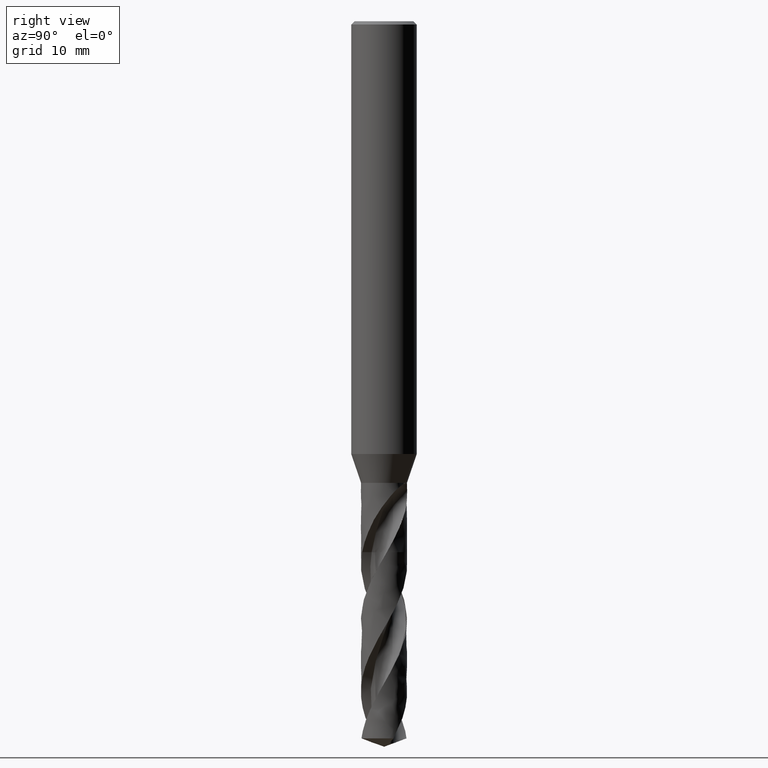
[diagram: clean part render]
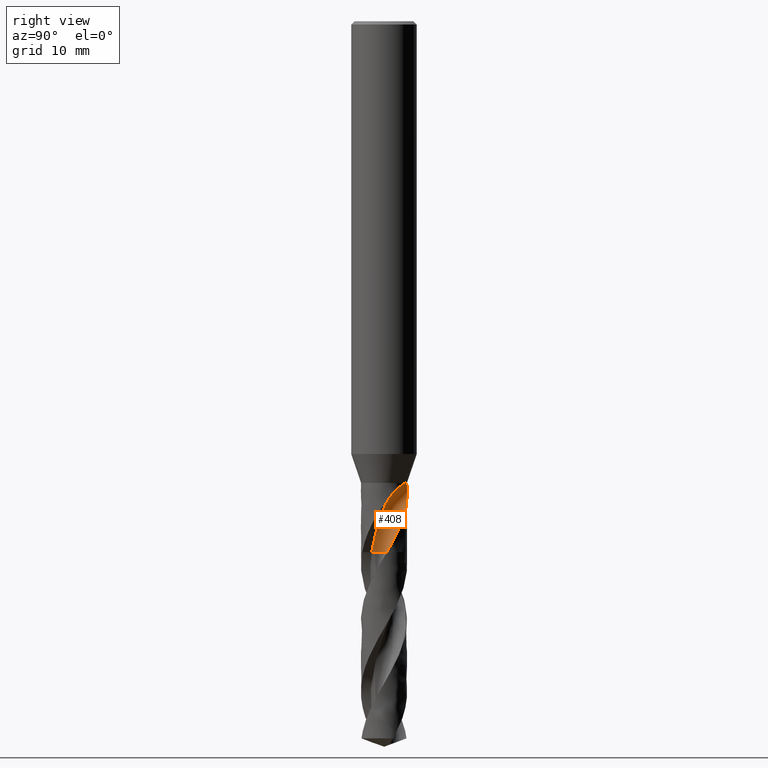
[diagram: same view with one face highlighted and labeled with its STEP entity id]
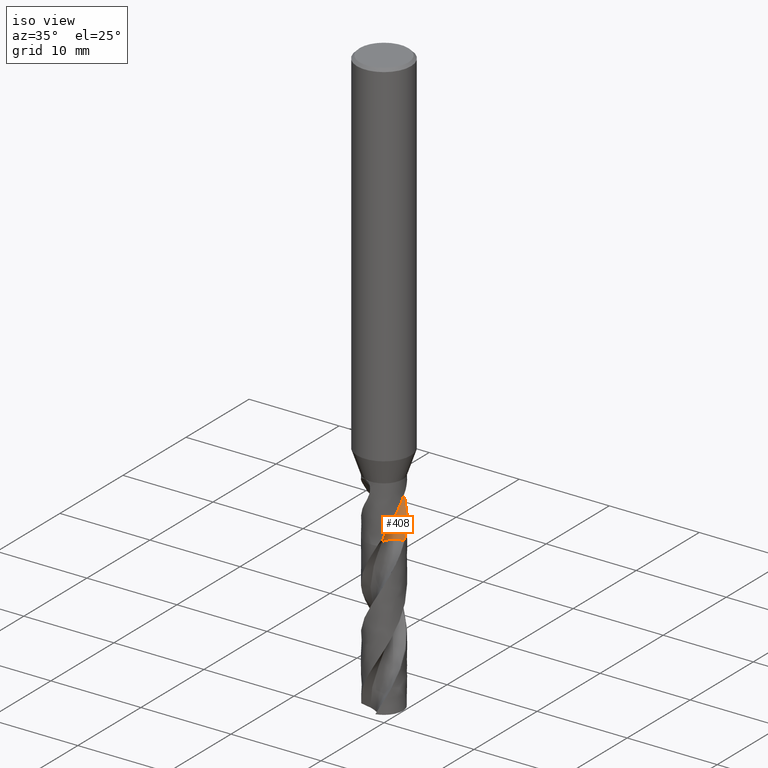
[diagram: same view with one face highlighted and labeled with its STEP entity id]
A machine part, right view. The second image highlights one B-rep face of the part: STEP entity #408.
A second angle (iso view) of the same face is appended — the face is thin or edge-on in the first view.
In plain terms, the highlighted face is a freeform B-spline surface patch.
Its self-contained STEP definition (entity closure, byte-faithful):
#109 = VERTEX_POINT('', #110);
#110 = CARTESIAN_POINT('', (0.720466397926303, 1.97254357859569, -42.));
#117 = EDGE_CURVE('', #118, #109, #120, .T.);
#118 = VERTEX_POINT('', #119);
#119 = CARTESIAN_POINT('', (0.718794540265984, 1.97315341747261, -42.));
#120 = CIRCLE('', #121, 2.1);
#121 = AXIS2_PLACEMENT_3D('', #122, #123, #124);
#122 = CARTESIAN_POINT('', (1.57474777179495E-31, 2.57175827820944E-15, -42.));
#123 = DIRECTION('', (3.74939945665464E-33, 6.12323399573677E-17, -1.));
#124 = DIRECTION('', (-1., 6.12323399573677E-17, 0.));
#245 = VERTEX_POINT('', #246);
#246 = CARTESIAN_POINT('', (0.560653576666516, -1.12535612456711, -48.3));
#252 = EDGE_CURVE('', #245, #253, #255, .T.);
#253 = VERTEX_POINT('', #254);
#254 = CARTESIAN_POINT('', (2.0252819029975, 0.555187547942891, -43.2444938822518));
#255 = B_SPLINE_CURVE_WITH_KNOTS('', 3, (#256, #257, #258, #259, #260, #261, #262, #263, #264, #265, #266, #267, #268, #269, #270, #271, #272), .UNSPECIFIED., .F., .U., (4, 1, 1, 1, 1, 1, 1, 1, 1, 1, 1, 1, 1, 1, 4), (17.75, 17.8435483870968, 18.2314516129032, 18.6193548387097, 19.0072580645161, 19.3951612903226, 19.783064516129, 20.1709677419355, 20.5588709677419, 20.9467741935484, 21.3346774193548, 21.7225806451613, 22.1104838709677, 22.4983870967742, 22.8055061177482), .UNSPECIFIED.);
#256 = CARTESIAN_POINT('', (0.560653576666516, -1.12535612456711, -48.3));
#257 = CARTESIAN_POINT('', (0.570326469002875, -1.12083874424312, -48.2688172043011));
#258 = CARTESIAN_POINT('', (0.619834531729123, -1.09695754696195, -48.1083333333333));
#259 = CARTESIAN_POINT('', (0.706546439594012, -1.04802661837741, -47.8185483870968));
#260 = CARTESIAN_POINT('', (0.815136861815549, -0.970280337042982, -47.4306451612903));
#261 = CARTESIAN_POINT('', (0.916515067570794, -0.882392689055831, -47.0427419354839));
#262 = CARTESIAN_POINT('', (1.00312700978166, -0.779458746114996, -46.6548387096774));
#263 = CARTESIAN_POINT('', (1.07082740614347, -0.663632137678925, -46.266935483871));
#264 = CARTESIAN_POINT('', (1.11767127387215, -0.538139102852908, -45.8790322580645));
#265 = CARTESIAN_POINT('', (1.14317540700796, -0.409455042223066, -45.4911290322581));
#266 = CARTESIAN_POINT('', (1.21197207491373, -0.296717842644385, -45.1032258064516));
#267 = CARTESIAN_POINT('', (1.31680452083975, -0.17967684608881, -44.7153225806452));
#268 = CARTESIAN_POINT('', (1.46043093059687, -0.04531628375623, -44.3274193548387));
#269 = CARTESIAN_POINT('', (1.63884970748528, 0.121376752312893, -43.9395161290323));
#270 = CARTESIAN_POINT('', (1.8314451171189, 0.319429573787991, -43.5785409715033));
#271 = CARTESIAN_POINT('', (1.96521196710713, 0.478045427874294, -43.3468668892431));
#272 = CARTESIAN_POINT('', (2.0252819029975, 0.55518754794289, -43.2444938822518));
#408 = ADVANCED_FACE('', (#409), #675, .T.);
#409 = FACE_OUTER_BOUND('', #410, .T.);
#410 = EDGE_LOOP('', (#411, #477, #516, #527, #618, #619, #674));
#411 = ORIENTED_EDGE('', *, *, #412, .T.);
#412 = EDGE_CURVE('', #245, #413, #415, .T.);
#413 = VERTEX_POINT('', #414);
#414 = CARTESIAN_POINT('', (2.08448666267482, 0.254784915430257, -48.3));
#415 = B_SPLINE_CURVE_WITH_KNOTS('', 3, (#416, #417, #418, #419, #420, #421, #422, #423, #424, #425, #426, #427, #428, #429, #430, #431, #432, #433, #434, #435, #436, #437, #438, #439, #440, #441, #442, #443, #444, #445, #446, #447, #448, #449, #450, #451, #452, #453, #454, #455, #456, #457, #458, #459, #460, #461, #462, #463, #464, #465, #466, #467, #468, #469, #470, #471, #472, #473, #474, #475, #476), .UNSPECIFIED., .F., .U., (4, 3, 3, 3, 3, 3, 3, 3, 3, 3, 3, 3, 3, 3, 3, 3, 3, 3, 3, 3, 4), (0., 0.132213928992968, 0.264236099309339, 0.396071631865521, 0.527724449058754, 0.659197371792932, 0.790492188199218, 0.921609697640628, 1.05254973227521, 1.18331115734, 1.20922925857439, 1.34144290770711, 1.47346480644019, 1.60530007388277, 1.7369526307869, 1.86842529652929, 1.99971985779418, 2.13083711254439, 2.26177689155326, 2.3925380586584, 2.40342444036958), .UNSPECIFIED.);
#416 = CARTESIAN_POINT('', (0.560653576666513, -1.12535612456711, -48.3));
#417 = CARTESIAN_POINT('', (0.55540932388341, -1.08159794649403, -48.3));
#418 = CARTESIAN_POINT('', (0.55245988058709, -1.03750378603264, -48.3));
#419 = CARTESIAN_POINT('', (0.551829550536965, -0.993436984247665, -48.3));
#420 = CARTESIAN_POINT('', (0.55120013469654, -0.949434095483475, -48.3));
#421 = CARTESIAN_POINT('', (0.552881366382324, -0.905337886733659, -48.3));
#422 = CARTESIAN_POINT('', (0.556859432121488, -0.861510664863356, -48.3));
#423 = CARTESIAN_POINT('', (0.560831874128837, -0.817745400878654, -48.3));
#424 = CARTESIAN_POINT('', (0.567105499460781, -0.774128754200451, -48.3));
#425 = CARTESIAN_POINT('', (0.575628907583493, -0.731018081030966, -48.3));
#426 = CARTESIAN_POINT('', (0.584140502824058, -0.687967156414412, -48.3));
#427 = CARTESIAN_POINT('', (0.594918829086154, -0.64530347154216, -48.3));
#428 = CARTESIAN_POINT('', (0.607875822412483, -0.603375608636678, -48.3));
#429 = CARTESIAN_POINT('', (0.620815110904572, -0.561505037252771, -48.3));
#430 = CARTESIAN_POINT('', (0.635962267880022, -0.520254473386053, -48.3));
#431 = CARTESIAN_POINT('', (0.653193871292957, -0.479960034830395, -48.3));
#432 = CARTESIAN_POINT('', (0.670402131058061, -0.439720183138225, -48.3));
#433 = CARTESIAN_POINT('', (0.6897358216432, -0.400324789764802, -48.3));
#434 = CARTESIAN_POINT('', (0.711037833963802, -0.362093988838794, -48.3));
#435 = CARTESIAN_POINT('', (0.732311079001325, -0.323914816662971, -48.3));
#436 = CARTESIAN_POINT('', (0.755604825035068, -0.286793878400138, -48.3));
#437 = CARTESIAN_POINT('', (0.780730292720963, -0.251032013012233, -48.3));
#438 = CARTESIAN_POINT('', (0.805821751695566, -0.21531855328867, -48.3));
#439 = CARTESIAN_POINT('', (0.832807608374214, -0.180864198995618, -48.3));
#440 = CARTESIAN_POINT('', (0.861469751919173, -0.147947424452706, -48.3));
#441 = CARTESIAN_POINT('', (0.890092798688707, -0.115075550241131, -48.3));
#442 = CARTESIAN_POINT('', (0.920464506143395, -0.083648673172589, -48.3));
#443 = CARTESIAN_POINT('', (0.952340065484604, -0.0539201071587754, -48.3));
#444 = CARTESIAN_POINT('', (0.958658090647599, -0.048027635559314, -48.3));
#445 = CARTESIAN_POINT('', (0.965037056963397, -0.0421998364500721, -48.3));
#446 = CARTESIAN_POINT('', (0.971474940496891, -0.0364385588903751, -48.3));
#447 = CARTESIAN_POINT('', (1.00431592938558, -0.00704907842861914, -48.3));
#448 = CARTESIAN_POINT('', (1.03874812602139, 0.0206530825710142, -48.3));
#449 = CARTESIAN_POINT('', (1.07448780625579, 0.0464396560103402, -48.3));
#450 = CARTESIAN_POINT('', (1.11017565297669, 0.0721888309980315, -48.3));
#451 = CARTESIAN_POINT('', (1.14726499277601, 0.0960985567143242, -48.3));
#452 = CARTESIAN_POINT('', (1.18545109044768, 0.117972384928199, -48.3));
#453 = CARTESIAN_POINT('', (1.2235832067666, 0.13981529144782, -48.3));
#454 = CARTESIAN_POINT('', (1.26291318591793, 0.159687763109911, -48.3));
#455 = CARTESIAN_POINT('', (1.30311879415282, 0.177426983122263, -48.3));
#456 = CARTESIAN_POINT('', (1.34326868142266, 0.195141618344042, -48.3));
#457 = CARTESIAN_POINT('', (1.38440118745553, 0.2107772050905, -48.3));
#458 = CARTESIAN_POINT('', (1.42618024180106, 0.224205993822741, -48.3));
#459 = CARTESIAN_POINT('', (1.46790220889512, 0.237616433345042, -48.3));
#460 = CARTESIAN_POINT('', (1.51038234894089, 0.248862565797848, -48.3));
#461 = CARTESIAN_POINT('', (1.55327452666382, 0.257852755816022, -48.3));
#462 = CARTESIAN_POINT('', (1.59610859885692, 0.266830766929275, -48.3));
#463 = CARTESIAN_POINT('', (1.63946969255266, 0.273583295268527, -48.3));
#464 = CARTESIAN_POINT('', (1.68300544898726, 0.278055468773705, -48.3));
#465 = CARTESIAN_POINT('', (1.72648241263438, 0.282521602839856, -48.3));
#466 = CARTESIAN_POINT('', (1.77025109367611, 0.284725626451494, -48.3));
#467 = CARTESIAN_POINT('', (1.81395677927016, 0.284649677624629, -48.3));
#468 = CARTESIAN_POINT('', (1.85760330637308, 0.284573831599445, -48.3));
#469 = CARTESIAN_POINT('', (1.90130467627924, 0.282223993294846, -48.3));
#470 = CARTESIAN_POINT('', (1.94470767784651, 0.277619155000399, -48.3));
#471 = CARTESIAN_POINT('', (1.98805147438993, 0.27302059805865, -48.3));
#472 = CARTESIAN_POINT('', (2.03121425214034, 0.266160841788323, -48.3));
#473 = CARTESIAN_POINT('', (2.0738481022363, 0.257095178506507, -48.3));
#474 = CARTESIAN_POINT('', (2.07739753802245, 0.2563404263646, -48.3));
#475 = CARTESIAN_POINT('', (2.08094379080992, 0.255570323400214, -48.3));
#476 = CARTESIAN_POINT('', (2.08448666233068, 0.254784913877895, -48.3));
#477 = ORIENTED_EDGE('', *, *, #478, .F.);
#478 = EDGE_CURVE('', #479, #413, #481, .T.);
#479 = VERTEX_POINT('', #480);
#480 = CARTESIAN_POINT('', (1.583637990497, 1.37916304875625, -46.1061919916705));
#481 = B_SPLINE_CURVE_WITH_KNOTS('', 3, (#482, #483, #484, #485, #486, #487, #488, #489, #490, #491, #492, #493, #494, #495, #496, #497, #498, #499, #500, #501, #502, #503, #504, #505, #506, #507, #508, #509, #510, #511, #512, #513, #514, #515), .UNSPECIFIED., .F., .U., (4, 3, 3, 3, 3, 3, 3, 3, 3, 3, 3, 4), (0., 0.197024655629448, 0.492449219754633, 0.689432775654647, 0.984800948005156, 1.11612172111188, 1.31306537129583, 1.510006098995, 1.80527386772211, 2.0021725076261, 2.44465978443875, 2.52450529147986), .UNSPECIFIED.);
#482 = CARTESIAN_POINT('', (1.583637990497, 1.37916304875625, -46.1061919916705));
#483 = CARTESIAN_POINT('', (1.60422536801812, 1.35552338323842, -46.1639026202265));
#484 = CARTESIAN_POINT('', (1.62438853536555, 1.33130110829821, -46.221530535667));
#485 = CARTESIAN_POINT('', (1.64407036438819, 1.30653459079376, -46.2790842997867));
#486 = CARTESIAN_POINT('', (1.67358187776514, 1.26939894594121, -46.3653821066501));
#487 = CARTESIAN_POINT('', (1.70202080399527, 1.23102815120017, -46.4515315087542));
#488 = CARTESIAN_POINT('', (1.72926157427588, 1.19149251266338, -46.5375092426732));
#489 = CARTESIAN_POINT('', (1.74742520874284, 1.16513089074879, -46.5948375823315));
#490 = CARTESIAN_POINT('', (1.76506036614773, 1.1382456760181, -46.6520976035713));
#491 = CARTESIAN_POINT('', (1.78213028366554, 1.11086077077297, -46.709282183098));
#492 = CARTESIAN_POINT('', (1.80772587369523, 1.06979831063365, -46.7950279432671));
#493 = CARTESIAN_POINT('', (1.83205156474957, 1.02760684959589, -46.8806294010498));
#494 = CARTESIAN_POINT('', (1.85496314746253, 0.984434721835786, -46.9660976525288));
#495 = CARTESIAN_POINT('', (1.86514964362771, 0.965240381602704, -47.0040968613501));
#496 = CARTESIAN_POINT('', (1.87505786583488, 0.945850691470941, -47.0420735308327));
#497 = CARTESIAN_POINT('', (1.88467647541766, 0.926279970099356, -47.0800287213452));
#498 = CARTESIAN_POINT('', (1.89910164240467, 0.896929478075366, -47.1369506658793));
#499 = CARTESIAN_POINT('', (1.91287762131463, 0.867166095906694, -47.1938294527289));
#500 = CARTESIAN_POINT('', (1.9259637455505, 0.83705653980189, -47.2506784859472));
#501 = CARTESIAN_POINT('', (1.93904967559885, 0.806947430498592, -47.3075266755717));
#502 = CARTESIAN_POINT('', (1.95144712818754, 0.77648790578222, -47.3643529664167));
#503 = CARTESIAN_POINT('', (1.96311448634019, 0.745775779655854, -47.4211874168353));
#504 = CARTESIAN_POINT('', (1.98060703269624, 0.699729941092437, -47.5063977314208));
#505 = CARTESIAN_POINT('', (1.99645887163848, 0.653122773563747, -47.5916590113492));
#506 = CARTESIAN_POINT('', (2.01064815301749, 0.606047856829269, -47.6769210934676));
#507 = CARTESIAN_POINT('', (2.02011024302747, 0.574656055690354, -47.7337779189751));
#508 = CARTESIAN_POINT('', (2.02883523320629, 0.543049361892089, -47.7906439486398));
#509 = CARTESIAN_POINT('', (2.03681737711352, 0.51124844477846, -47.8475004520696));
#510 = CARTESIAN_POINT('', (2.05475552601267, 0.439782734194499, -47.9752731953656));
#511 = CARTESIAN_POINT('', (2.06894064881365, 0.367309231214506, -48.10306793612));
#512 = CARTESIAN_POINT('', (2.07927031650546, 0.294338157396046, -48.2308314647802));
#513 = CARTESIAN_POINT('', (2.08113427417755, 0.281170745147861, -48.2538860117962));
#514 = CARTESIAN_POINT('', (2.08287333634849, 0.267984116034808, -48.2769447293836));
#515 = CARTESIAN_POINT('', (2.08448666267482, 0.254784915430257, -48.3));
#516 = ORIENTED_EDGE('', *, *, #517, .T.);
#517 = EDGE_CURVE('', #479, #518, #520, .T.);
#518 = VERTEX_POINT('', #519);
#519 = CARTESIAN_POINT('', (1.16770309411594, 1.74541384318793, -45.1337341818887));
#520 = B_SPLINE_CURVE_WITH_KNOTS('', 3, (#521, #522, #523, #524, #525, #526), .UNSPECIFIED., .F., .U., (4, 1, 1, 4), (19.9438080083296, 20.1709677419355, 20.5588709677419, 20.9162658181113), .UNSPECIFIED.);
#521 = CARTESIAN_POINT('', (1.583637990497, 1.37916304875625, -46.1061919916705));
#522 = CARTESIAN_POINT('', (1.55064065060358, 1.40787591993925, -46.0304720804685));
#523 = CARTESIAN_POINT('', (1.45774299775837, 1.48107082717015, -45.8254510939977));
#524 = CARTESIAN_POINT('', (1.29952566105369, 1.57560722705682, -45.5012984907371));
#525 = CARTESIAN_POINT('', (1.20885982337744, 1.68468856624742, -45.2528657986785));
#526 = CARTESIAN_POINT('', (1.16770309411594, 1.74541384318793, -45.1337341818887));
#527 = ORIENTED_EDGE('', *, *, #528, .F.);
#528 = EDGE_CURVE('', #118, #518, #529, .T.);
#529 = B_SPLINE_CURVE_WITH_KNOTS('', 3, (#530, #531, #532, #533, #534, #535, #536, #537, #538, #539, #540, #541, #542, #543, #544, #545, #546, #547, #548, #549, #550, #551, #552, #553, #554, #555, #556, #557, #558, #559, #560, #561, #562, #563, #564, #565, #566, #567, #568, #569, #570, #571, #572, #573, #574, #575, #576, #577, #578, #579, #580, #581, #582, #583, #584, #585, #586, #587, #588, #589, #590, #591, #592, #593, #594, #595, #596, #597, #598, #599, #600, #601, #602, #603, #604, #605, #606, #607, #608, #609, #610, #611, #612, #613, #614, #615, #616, #617), .UNSPECIFIED., .F., .U., (4, 3, 3, 3, 3, 3, 3, 3, 3, 3, 3, 3, 3, 3, 3, 3, 3, 3, 3, 3, 3, 3, 3, 3, 3, 3, 3, 3, 3, 4), (0., 0.0874299224129994, 0.174677934202901, 0.261721247902022, 0.348557675726441, 0.435222029439027, 0.521793964433574, 0.608382169396572, 0.69508724976802, 0.781970469077669, 0.869048740468852, 0.927278008374799, 0.966158224714334, 1.09733475831162, 1.22880982776355, 1.36049175887568, 1.4923110568107, 1.62421622151715, 1.75617126674534, 1.88814993071037, 2.08658447593534, 2.28496646652872, 2.48325048734324, 2.68140808821427, 2.87942357381475, 3.07729317277851, 3.27502487247425, 3.47261776759194, 3.6700683881579, 3.82437349644762), .UNSPECIFIED.);
#530 = CARTESIAN_POINT('', (0.718794540260915, 1.97315341747445, -42.));
#531 = CARTESIAN_POINT('', (0.691411591593925, 1.98312867526423, -42.0000269198401));
#532 = CARTESIAN_POINT('', (0.66377706835838, 1.99254635827888, -42.0013789905041));
#533 = CARTESIAN_POINT('', (0.636139863195933, 2.00133107567266, -42.0042679352024));
#534 = CARTESIAN_POINT('', (0.608560161243749, 2.01009751518889, -42.0071508690326));
#535 = CARTESIAN_POINT('', (0.580886791196602, 2.01826120615736, -42.0115770012723));
#536 = CARTESIAN_POINT('', (0.553470529514099, 2.02575180438261, -42.0177447612073));
#537 = CARTESIAN_POINT('', (0.526118590860941, 2.03322482844057, -42.0238980505699));
#538 = CARTESIAN_POINT('', (0.498909026030913, 2.04005767621211, -42.0318158728286));
#539 = CARTESIAN_POINT('', (0.472304008762485, 2.04619865196586, -42.0416290822718));
#540 = CARTESIAN_POINT('', (0.44576222670461, 2.05232503175484, -42.0514189675291));
#541 = CARTESIAN_POINT('', (0.419688892296591, 2.05779307092909, -42.063151994475));
#542 = CARTESIAN_POINT('', (0.394627025873341, 2.06258806125954, -42.0768176996011));
#543 = CARTESIAN_POINT('', (0.369614821769393, 2.0673735498898, -42.0904563249159));
#544 = CARTESIAN_POINT('', (0.345466671762442, 2.0715170163996, -42.1061052416065));
#545 = CARTESIAN_POINT('', (0.322719042765402, 2.07505479914064, -42.123556683505));
#546 = CARTESIAN_POINT('', (0.299995671800878, 2.07858880919623, -42.1409895152158));
#547 = CARTESIAN_POINT('', (0.278530301794774, 2.08154236605355, -42.1603299413696));
#548 = CARTESIAN_POINT('', (0.258738569391321, 2.08399960477668, -42.18118644498));
#549 = CARTESIAN_POINT('', (0.238943117412214, 2.08645730530301, -42.2020468682747));
#550 = CARTESIAN_POINT('', (0.220700522971108, 2.08843601378144, -42.2245456808395));
#551 = CARTESIAN_POINT('', (0.204234932492301, 2.09004499768543, -42.248196325058));
#552 = CARTESIAN_POINT('', (0.187747117016297, 2.09165615337079, -42.2718788925472));
#553 = CARTESIAN_POINT('', (0.172947876527279, 2.0929072612969, -42.2968379873868));
#554 = CARTESIAN_POINT('', (0.159879718796476, 2.0939050779626, -42.3225971702177));
#555 = CARTESIAN_POINT('', (0.146784712030616, 2.0949049446812, -42.3484092762851));
#556 = CARTESIAN_POINT('', (0.135365016492211, 2.09565578245532, -42.3751347732437));
#557 = CARTESIAN_POINT('', (0.125541569321733, 2.09624409703933, -42.4023725691701));
#558 = CARTESIAN_POINT('', (0.115696068596684, 2.09683373238453, -42.4296715137145));
#559 = CARTESIAN_POINT('', (0.107416367834291, 2.09726221064704, -42.4575770852039));
#560 = CARTESIAN_POINT('', (0.100564479397398, 2.09759070971521, -42.4857809438197));
#561 = CARTESIAN_POINT('', (0.095982619410064, 2.09781037714707, -42.5046408730889));
#562 = CARTESIAN_POINT('', (0.0920309676029847, 2.09798514282062, -42.523663672723));
#563 = CARTESIAN_POINT('', (0.088663736390594, 2.09812743698985, -42.5427785918464));
#564 = CARTESIAN_POINT('', (0.0864154052212163, 2.09822244811196, -42.5555417986934));
#565 = CARTESIAN_POINT('', (0.0844263105165185, 2.09830294344897, -42.568353179417));
#566 = CARTESIAN_POINT('', (0.0826828442683955, 2.09837164183652, -42.5811952616139));
#567 = CARTESIAN_POINT('', (0.0768006275421453, 2.09860342080257, -42.624522690969));
#568 = CARTESIAN_POINT('', (0.0736986159441537, 2.09870654648095, -42.6682872334513));
#569 = CARTESIAN_POINT('', (0.0728902559465979, 2.09873462128685, -42.7120052628619));
#570 = CARTESIAN_POINT('', (0.0720800562568645, 2.09876275998631, -42.7558227871966));
#571 = CARTESIAN_POINT('', (0.0735697310443698, 2.098713641081, -42.7997233427449));
#572 = CARTESIAN_POINT('', (0.0769516250984069, 2.09858963291891, -42.8434175079016));
#573 = CARTESIAN_POINT('', (0.0803388401933191, 2.09846542964352, -42.8871804210542));
#574 = CARTESIAN_POINT('', (0.0856308413584799, 2.09826468467165, -42.9308248223495));
#575 = CARTESIAN_POINT('', (0.0925036937012461, 2.09796164565791, -42.9741763308375));
#576 = CARTESIAN_POINT('', (0.0993837156069327, 2.09765829052254, -43.0175730623788));
#577 = CARTESIAN_POINT('', (0.107858432580646, 2.09725132179477, -43.0607380536887));
#578 = CARTESIAN_POINT('', (0.117668892227725, 2.09670074922529, -43.1035650870391));
#579 = CARTESIAN_POINT('', (0.127485742384458, 2.09614981801418, -43.1464200178152));
#580 = CARTESIAN_POINT('', (0.13865067581706, 2.09545414600609, -43.1889810418441));
#581 = CARTESIAN_POINT('', (0.150951167180334, 2.09456767499332, -43.2311844924778));
#582 = CARTESIAN_POINT('', (0.163256310028847, 2.0936808687576, -43.2734039025331));
#583 = CARTESIAN_POINT('', (0.176707967853689, 2.09260221453306, -43.3152983700472));
#584 = CARTESIAN_POINT('', (0.19113006258549, 2.09128412684075, -43.3568308558821));
#585 = CARTESIAN_POINT('', (0.205554738739318, 2.0899658032229, -43.3983707756491));
#586 = CARTESIAN_POINT('', (0.220959324213374, 2.08840702144984, -43.4395734593042));
#587 = CARTESIAN_POINT('', (0.237192164948232, 2.08656173569995, -43.4804202951147));
#588 = CARTESIAN_POINT('', (0.261598809720634, 2.08378728392426, -43.5418349438498));
#589 = CARTESIAN_POINT('', (0.287894573408038, 2.08036155944196, -43.6024957671924));
#590 = CARTESIAN_POINT('', (0.315638269928298, 2.07614365653167, -43.6623926583421));
#591 = CARTESIAN_POINT('', (0.343374618636472, 2.07192687071685, -43.7222736860288));
#592 = CARTESIAN_POINT('', (0.372582573720779, 2.06691447073861, -43.781437437577));
#593 = CARTESIAN_POINT('', (0.402883067308239, 2.06099132314435, -43.8399149564199));
#594 = CARTESIAN_POINT('', (0.433168597175216, 2.05507110066169, -43.8983635964842));
#595 = CARTESIAN_POINT('', (0.46456296456731, 2.04823744280061, -43.9561611750607));
#596 = CARTESIAN_POINT('', (0.496720176920396, 2.04040904375573, -44.0133725003469));
#597 = CARTESIAN_POINT('', (0.528856886799546, 2.03258563586325, -44.0705473494083));
#598 = CARTESIAN_POINT('', (0.561771472615215, 2.02376485917267, -44.1271615559104));
#599 = CARTESIAN_POINT('', (0.595149547224799, 2.01390094504123, -44.1833001748057));
#600 = CARTESIAN_POINT('', (0.628503683645373, 2.00404410514171, -44.2393985320357));
#601 = CARTESIAN_POINT('', (0.662332725313524, 1.99314185178009, -44.2950416972358));
#602 = CARTESIAN_POINT('', (0.69633632874954, 1.98119047980336, -44.3503372762119));
#603 = CARTESIAN_POINT('', (0.730314880249205, 1.96924791292314, -44.4055921165255));
#604 = CARTESIAN_POINT('', (0.764479287077551, 1.9562538300323, -44.460514989133));
#605 = CARTESIAN_POINT('', (0.798557322428585, 1.94224257053444, -44.5152199830338));
#606 = CARTESIAN_POINT('', (0.832611608117442, 1.92824107576264, -44.5698868519338));
#607 = CARTESIAN_POINT('', (0.86658844261999, 1.9132198915671, -44.6243496753849));
#608 = CARTESIAN_POINT('', (0.900221863958808, 1.89726134089391, -44.678740119531));
#609 = CARTESIAN_POINT('', (0.933831675158914, 1.8813139928751, -44.7330923824311));
#610 = CARTESIAN_POINT('', (0.967103135885562, 1.86442835966546, -44.787387522677));
#611 = CARTESIAN_POINT('', (0.999789999153402, 1.84673223765462, -44.8417614321888));
#612 = CARTESIAN_POINT('', (1.03245332661133, 1.8290488575383, -44.8960961903759));
#613 = CARTESIAN_POINT('', (1.06454064099079, 1.81055224650709, -44.9505223103249));
#614 = CARTESIAN_POINT('', (1.09583973116921, 1.79140595164552, -45.0051633863326));
#615 = CARTESIAN_POINT('', (1.12029956566104, 1.77644336964151, -45.0478646810983));
#616 = CARTESIAN_POINT('', (1.14428271990072, 1.76108235844762, -45.0907045799915));
#617 = CARTESIAN_POINT('', (1.16770309411594, 1.74541384318793, -45.1337341818887));
#618 = ORIENTED_EDGE('', *, *, #117, .T.);
#619 = ORIENTED_EDGE('', *, *, #620, .T.);
#620 = EDGE_CURVE('', #109, #253, #621, .T.);
#621 = B_SPLINE_CURVE_WITH_KNOTS('', 3, (#622, #623, #624, #625, #626, #627, #628, #629, #630, #631, #632, #633, #634, #635, #636, #637, #638, #639, #640, #641, #642, #643, #644, #645, #646, #647, #648, #649, #650, #651, #652, #653, #654, #655, #656, #657, #658, #659, #660, #661, #662, #663, #664, #665, #666, #667, #668, #669, #670, #671, #672, #673), .UNSPECIFIED., .F., .U., (4, 3, 3, 3, 3, 3, 3, 3, 3, 3, 3, 3, 3, 3, 3, 3, 3, 4), (0., 0.0878929396424457, 0.175589574816811, 0.263133296341456, 0.350559178615306, 0.481403379782582, 0.612020451042066, 0.742483958243334, 0.872843376962644, 1.00313277103759, 1.19768112889284, 1.39214302574244, 1.58657869138097, 1.78103073299215, 1.97553697828593, 2.17013422830964, 2.36484937984587, 2.41715958268865), .UNSPECIFIED.);
#622 = CARTESIAN_POINT('', (0.720466397929641, 1.97254357859448, -42.));
#623 = CARTESIAN_POINT('', (0.747985855054722, 1.96249216864691, -42.0000270338315));
#624 = CARTESIAN_POINT('', (0.775319545448177, 1.95185340812221, -42.0013874076352));
#625 = CARTESIAN_POINT('', (0.802296370328395, 1.9407010419325, -42.0038829518591));
#626 = CARTESIAN_POINT('', (0.829212943824598, 1.92957358399278, -42.0063729224104));
#627 = CARTESIAN_POINT('', (0.855828474713802, 1.91791321206646, -42.0099973377478));
#628 = CARTESIAN_POINT('', (0.882028361910393, 1.90578749308145, -42.0145859162102));
#629 = CARTESIAN_POINT('', (0.908182565251891, 1.89368291730156, -42.0191664937238));
#630 = CARTESIAN_POINT('', (0.933964101391573, 1.8810959506641, -42.024714915722));
#631 = CARTESIAN_POINT('', (0.959295927280694, 1.86808761140978, -42.0310888081408));
#632 = CARTESIAN_POINT('', (0.984593654969143, 1.85509678218273, -42.037454120907));
#633 = CARTESIAN_POINT('', (1.00947521128828, 1.84166948214948, -42.0446507790619));
#634 = CARTESIAN_POINT('', (1.03388836468155, 1.82786073030089, -42.0525609112099));
#635 = CARTESIAN_POINT('', (1.07042582327661, 1.8071941375511, -42.0643994525562));
#636 = CARTESIAN_POINT('', (1.10598043748367, 1.78563480413637, -42.0778556502423));
#637 = CARTESIAN_POINT('', (1.14044229441385, 1.76334664008869, -42.0926158385198));
#638 = CARTESIAN_POINT('', (1.17484432967584, 1.74109716563215, -42.107350404873));
#639 = CARTESIAN_POINT('', (1.20822159723944, 1.71808092124253, -42.1234123983036));
#640 = CARTESIAN_POINT('', (1.24051159128253, 1.69444120343366, -42.1405636844359));
#641 = CARTESIAN_POINT('', (1.27276362258095, 1.67082927840077, -42.1576948061205));
#642 = CARTESIAN_POINT('', (1.30397910556128, 1.64656068569067, -42.1759386557899));
#643 = CARTESIAN_POINT('', (1.33412328567183, 1.62176294772948, -42.1951113565458));
#644 = CARTESIAN_POINT('', (1.36424341567047, 1.5969849942962, -42.214268760631));
#645 = CARTESIAN_POINT('', (1.39333115724177, 1.57164849768483, -42.2343775072996));
#646 = CARTESIAN_POINT('', (1.42136897640567, 1.54586876315925, -42.2552930833874));
#647 = CARTESIAN_POINT('', (1.44939173460709, 1.52010287662991, -42.2761974243393));
#648 = CARTESIAN_POINT('', (1.47639507218024, 1.4938674495559, -42.2979298605488));
#649 = CARTESIAN_POINT('', (1.50237283349369, 1.4672681653945, -42.3203749347463));
#650 = CARTESIAN_POINT('', (1.54116287346716, 1.42755006638524, -42.3538899599567));
#651 = CARTESIAN_POINT('', (1.57772780629038, 1.38695642741754, -42.3890463997302));
#652 = CARTESIAN_POINT('', (1.61207917740887, 1.3458085769398, -42.4255469368255));
#653 = CARTESIAN_POINT('', (1.64641528212202, 1.30467901335264, -42.4620312523851));
#654 = CARTESIAN_POINT('', (1.67859813955821, 1.26292648804879, -42.4999210927013));
#655 = CARTESIAN_POINT('', (1.70866617460949, 1.22084393095325, -42.5389939224689));
#656 = CARTESIAN_POINT('', (1.73873015374551, 1.17876705042703, -42.5780614816531));
#657 = CARTESIAN_POINT('', (1.76672328823695, 1.13629985426693, -42.6183684440631));
#658 = CARTESIAN_POINT('', (1.79270433219597, 1.0937143947694, -42.659745308264));
#659 = CARTESIAN_POINT('', (1.81868756435881, 1.05112534859287, -42.7011256573524));
#660 = CARTESIAN_POINT('', (1.84269090124745, 1.00836490732889, -42.7436282162427));
#661 = CARTESIAN_POINT('', (1.86479035265238, 0.96568987809473, -42.7871224069582));
#662 = CARTESIAN_POINT('', (1.88689596429939, 0.923002953157543, -42.8306287217187));
#663 = CARTESIAN_POINT('', (1.9071215066076, 0.880354244387548, -42.875174718499));
#664 = CARTESIAN_POINT('', (1.92556387221752, 0.837975998469327, -42.9206455275365));
#665 = CARTESIAN_POINT('', (1.94401486656067, 0.795577924803064, -42.9661376112569));
#666 = CARTESIAN_POINT('', (1.96069924512138, 0.753408984654588, -43.0126002511664));
#667 = CARTESIAN_POINT('', (1.9757282631852, 0.711686609436474, -43.0599387930354));
#668 = CARTESIAN_POINT('', (1.99076638694791, 0.669938955694927, -43.10730601612));
#669 = CARTESIAN_POINT('', (2.00416035135693, 0.628602223710233, -43.1555928883157));
#670 = CARTESIAN_POINT('', (2.0160355336888, 0.587878156512166, -43.2047171794293));
#671 = CARTESIAN_POINT('', (2.01922580004287, 0.57693764058977, -43.2179144145308));
#672 = CARTESIAN_POINT('', (2.02230704667197, 0.566039597313299, -43.2311738613551));
#673 = CARTESIAN_POINT('', (2.0252819029975, 0.55518754794289, -43.2444938822518));
#674 = ORIENTED_EDGE('', *, *, #252, .F.);
#675 = (
   BOUNDED_SURFACE ()
   B_SPLINE_SURFACE (3, 2, ((#676, #677, #678, #679, #680), (#681, #682, #683, #684, #685), (#686, #687, #688, #689, #690), (#691, #692, #693, #694, #695), (#696, #697, #698, #699, #700), (#701, #702, #703, #704, #705), (#706, #707, #708, #709, #710), (#711, #712, #713, #714, #715), (#716, #717, #718, #719, #720), (#721, #722, #723, #724, #725), (#726, #727, #728, #729, #730), (#731, #732, #733, #734, #735), (#736, #737, #738, #739, #740), (#741, #742, #743, #744, #745), (#746, #747, #748, #749, #750), (#751, #752, #753, #754, #755), (#756, #757, #758, #759, #760), (#761, #762, #763, #764, #765), (#766, #767, #768, #769, #770)), .UNSPECIFIED., .F., .F., .U.)
   B_SPLINE_SURFACE_WITH_KNOTS ((4, 1, 1, 1, 1, 1, 1, 1, 1, 1, 1, 1, 1, 1, 1, 1, 4), (3, 2, 3), (17.75, 17.8435483870968, 18.2314516129032, 18.6193548387097, 19.0072580645161, 19.3951612903226, 19.783064516129, 20.1709677419355, 20.5588709677419, 20.9467741935484, 21.3346774193548, 21.7225806451613, 22.1104838709677, 22.4983870967742, 22.8862903225806, 23.2741935483871, 24.05), (0., 0.5, 1.), .UNSPECIFIED.)
   GEOMETRIC_REPRESENTATION_ITEM ()
   RATIONAL_B_SPLINE_SURFACE (((1., 0.887010833178222, 1., 0.887010833178222, 1.), (1., 0.887010833178222, 1., 0.887010833178222, 1.), (1., 0.887010833178222, 1., 0.887010833178222, 1.), (1., 0.887010833178222, 1., 0.887010833178222, 1.), (1., 0.887010833178222, 1., 0.887010833178222, 1.), (1., 0.887010833178222, 1., 0.887010833178222, 1.), (1., 0.887010833178222, 1., 0.887010833178222, 1.), (1., 0.887010833178222, 1., 0.887010833178222, 1.), (1., 0.887010833178221, 1., 0.887010833178221, 1.), (1., 0.887010833178222, 1., 0.887010833178222, 1.), (1., 0.887010833178221, 1., 0.887010833178221, 1.), (1., 0.887010833178222, 1., 0.887010833178222, 1.), (1., 0.887010833178222, 1., 0.887010833178222, 1.), (1., 0.887010833178222, 1., 0.887010833178222, 1.), (1., 0.887010833178222, 1., 0.887010833178222, 1.), (1., 0.887010833178221, 1., 0.887010833178221, 1.), (1., 0.887010833178222, 1., 0.887010833178222, 1.), (1., 0.887010833178222, 1., 0.887010833178222, 1.), (1., 0.887010833178222, 1., 0.887010833178222, 1.)))
   REPRESENTATION_ITEM ('')
   SURFACE ()
);
#676 = CARTESIAN_POINT('', (2.09877447609737, 0.251530213826484, -48.3));
#677 = CARTESIAN_POINT('', (1.46006728762341, 0.400936785072087, -48.3));
#678 = CARTESIAN_POINT('', (0.971333196320669, -0.0365654253659541, -48.3));
#679 = CARTESIAN_POINT('', (0.482599105017932, -0.474067635803995, -48.3));
#680 = CARTESIAN_POINT('', (0.560653576666516, -1.12535612456711, -48.3));
#681 = CARTESIAN_POINT('', (2.09709011162836, 0.269399496653248, -48.2688172043011));
#682 = CARTESIAN_POINT('', (1.45697753119409, 0.41341654362985, -48.2688172043011));
#683 = CARTESIAN_POINT('', (0.971852180001781, -0.0283282006293433, -48.2688172043011));
#684 = CARTESIAN_POINT('', (0.486726828809472, -0.470072944888536, -48.2688172043011));
#685 = CARTESIAN_POINT('', (0.570326469002874, -1.12083874424312, -48.2688172043011));
#686 = CARTESIAN_POINT('', (2.08726546305623, 0.361288311097248, -48.1083333333333));
#687 = CARTESIAN_POINT('', (1.44026515444434, 0.477467473486111, -48.1083333333333));
#688 = CARTESIAN_POINT('', (0.973992624738089, 0.014113477972326, -48.1083333333333));
#689 = CARTESIAN_POINT('', (0.507720095031834, -0.449240517541458, -48.1083333333333));
#690 = CARTESIAN_POINT('', (0.619834531729123, -1.09695754696195, -48.1083333333333));
#691 = CARTESIAN_POINT('', (2.05881023028262, 0.526244680061561, -47.8185483870968));
#692 = CARTESIAN_POINT('', (1.402599908768, 0.591301808086106, -47.8185483870968));
#693 = CARTESIAN_POINT('', (0.972921451639994, 0.0910810173854205, -47.8185483870968));
#694 = CARTESIAN_POINT('', (0.543242994511987, -0.409139773315265, -47.8185483870968));
#695 = CARTESIAN_POINT('', (0.706546439594012, -1.04802661837741, -47.8185483870968));
#696 = CARTESIAN_POINT('', (1.99709851052765, 0.742132041260451, -47.4306451612903));
#697 = CARTESIAN_POINT('', (1.33597033058687, 0.737685772120373, -47.4306451612903));
#698 = CARTESIAN_POINT('', (0.960404955620739, 0.193570996776403, -47.4306451612903));
#699 = CARTESIAN_POINT('', (0.584839580654608, -0.350543778567568, -47.4306451612903));
#700 = CARTESIAN_POINT('', (0.815136861815549, -0.970280337042982, -47.4306451612903));
#701 = CARTESIAN_POINT('', (1.91525232315086, 0.952333011696406, -47.0427419354839));
#702 = CARTESIAN_POINT('', (1.25568110168517, 0.877904544450694, -47.0427419354839));
#703 = CARTESIAN_POINT('', (0.938334822054789, 0.294925015027018, -47.0427419354839));
#704 = CARTESIAN_POINT('', (0.62098854242441, -0.288054514396658, -47.0427419354839));
#705 = CARTESIAN_POINT('', (0.916515067570794, -0.882392689055832, -47.0427419354839));
#706 = CARTESIAN_POINT('', (1.80123505887087, 1.14765973466097, -46.6548387096774));
#707 = CARTESIAN_POINT('', (1.15418069065201, 1.00417197638532, -46.6548387096774));
#708 = CARTESIAN_POINT('', (0.900583842525611, 0.391834870840973, -46.6548387096774));
#709 = CARTESIAN_POINT('', (0.646986994399209, -0.22050223470337, -46.6548387096774));
#710 = CARTESIAN_POINT('', (1.00312700978166, -0.779458746114996, -46.6548387096774));
#711 = CARTESIAN_POINT('', (1.65611327663438, 1.32033131331966, -46.266935483871));
#712 = CARTESIAN_POINT('', (1.03305047039727, 1.11108931097517, -46.266935483871));
#713 = CARTESIAN_POINT('', (0.847077340344528, 0.480689857485897, -46.266935483871));
#714 = CARTESIAN_POINT('', (0.66110421029178, -0.149709596003372, -46.266935483871));
#715 = CARTESIAN_POINT('', (1.07082740614347, -0.663632137678925, -46.266935483871));
#716 = CARTESIAN_POINT('', (1.48389570790451, 1.46544432810254, -45.8790322580645));
#717 = CARTESIAN_POINT('', (0.895650635602646, 1.19560845269299, -45.8790322580645));
#718 = CARTESIAN_POINT('', (0.779283732294918, 0.55897479935692, -45.8790322580645));
#719 = CARTESIAN_POINT('', (0.66291682898719, -0.0776588539791518, -45.8790322580645));
#720 = CARTESIAN_POINT('', (1.11767127387215, -0.538139102852908, -45.8790322580645));
#721 = CARTESIAN_POINT('', (1.29456199696433, 1.5785730647016, -45.4911290322581));
#722 = CARTESIAN_POINT('', (0.749520450508694, 1.25565343435574, -45.4911290322581));
#723 = CARTESIAN_POINT('', (0.701417737968268, 0.623962446552605, -45.4911290322581));
#724 = CARTESIAN_POINT('', (0.65331502542784, -0.007728541250533, -45.4911290322581));
#725 = CARTESIAN_POINT('', (1.14317540700796, -0.409455042223066, -45.4911290322581));
#726 = CARTESIAN_POINT('', (1.15495155860672, 1.75123393719197, -45.1032258064516));
#727 = CARTESIAN_POINT('', (0.632295580632665, 1.36314813214876, -45.1032258064516));
#728 = CARTESIAN_POINT('', (0.650413707909417, 0.71241654627635, -45.1032258064516));
#729 = CARTESIAN_POINT('', (0.66853183518617, 0.0616849604039382, -45.1032258064516));
#730 = CARTESIAN_POINT('', (1.21197207491373, -0.296717842644385, -45.1032258064516));
#731 = CARTESIAN_POINT('', (1.02889822816701, 1.98338495120856, -44.7153225806452));
#732 = CARTESIAN_POINT('', (0.51836051588684, 1.51422429545696, -44.7153225806452));
#733 = CARTESIAN_POINT('', (0.609842024513253, 0.826916787753908, -44.7153225806452));
#734 = CARTESIAN_POINT('', (0.701323533139665, 0.139609280050858, -44.7153225806452));
#735 = CARTESIAN_POINT('', (1.31680452083975, -0.179676846088811, -44.7153225806452));
#736 = CARTESIAN_POINT('', (0.897352764782007, 2.28675126255358, -44.3274193548387));
#737 = CARTESIAN_POINT('', (0.392976398443738, 1.71516618361855, -44.3274193548387));
#738 = CARTESIAN_POINT('', (0.571893085554466, 0.974157519394511, -44.3274193548387));
#739 = CARTESIAN_POINT('', (0.750809772665193, 0.233148855170476, -44.3274193548387));
#740 = CARTESIAN_POINT('', (1.46043093059687, -0.0453162837562301, -44.3274193548387));
#741 = CARTESIAN_POINT('', (0.734282366496052, 2.66348395434446, -43.9395161290323));
#742 = CARTESIAN_POINT('', (0.237473389396902, 1.9647346195389, -43.9395161290323));
#743 = CARTESIAN_POINT('', (0.524897412816707, 1.15698637696657, -43.9395161290323));
#744 = CARTESIAN_POINT('', (0.812321436236511, 0.349238134394248, -43.9395161290323));
#745 = CARTESIAN_POINT('', (1.63884970748528, 0.121376752312892, -43.9395161290323));
#746 = CARTESIAN_POINT('', (0.514301833016341, 3.11149179166258, -43.5516129032258));
#747 = CARTESIAN_POINT('', (0.0340906674202353, 2.2587539182156, -43.5516129032258));
#748 = CARTESIAN_POINT('', (0.45717483063838, 1.37627760963386, -43.5516129032258));
#749 = CARTESIAN_POINT('', (0.880258993856524, 0.493801301052125, -43.5516129032258));
#750 = CARTESIAN_POINT('', (1.84581237268308, 0.334203942018026, -43.5516129032258));
#751 = CARTESIAN_POINT('', (0.211823392579655, 3.62284935457371, -43.1637096774194));
#752 = CARTESIAN_POINT('', (-0.234456877427485, 2.58889398123447, -43.1637096774194));
#753 = CARTESIAN_POINT('', (0.35653393346246, 1.63027014734635, -43.1637096774194));
#754 = CARTESIAN_POINT('', (0.947524744352403, 0.671646313458221, -43.1637096774194));
#755 = CARTESIAN_POINT('', (2.07176182081248, 0.605913601911999, -43.1637096774194));
#756 = CARTESIAN_POINT('', (-0.333785710470541, 4.37121993500976, -42.6465053763441));
#757 = CARTESIAN_POINT('', (-0.70039263291882, 3.06112840914809, -42.6465053763441));
#758 = CARTESIAN_POINT('', (0.162494426576941, 2.00938397047665, -42.6465053763441));
#759 = CARTESIAN_POINT('', (1.0253814860727, 0.957639531805207, -42.6465053763441));
#760 = CARTESIAN_POINT('', (2.381851777639, 1.06121940349648, -42.6465053763441));
#761 = CARTESIAN_POINT('', (-0.93667145275715, 4.97971608550315, -42.2586021505376));
#762 = CARTESIAN_POINT('', (-1.19205733561385, 3.42819728161424, -42.2586021505376));
#763 = CARTESIAN_POINT('', (-0.0676108602387542, 2.32908278712339, -42.2586021505376));
#764 = CARTESIAN_POINT('', (1.05683561513634, 1.22996829263253, -42.2586021505376));
#765 = CARTESIAN_POINT('', (2.60213350241933, 1.52063474673775, -42.2586021505376));
#766 = CARTESIAN_POINT('', (-1.44897521964773, 5.37356974310713, -42.));
#767 = CARTESIAN_POINT('', (-1.59677301019523, 3.65282819924576, -42.));
#768 = CARTESIAN_POINT('', (-0.271997386850973, 2.54478253436818, -42.));
#769 = CARTESIAN_POINT('', (1.05277823649328, 1.4367368694906, -42.));
#770 = CARTESIAN_POINT('', (2.72029618904584, 1.88638064580256, -42.));